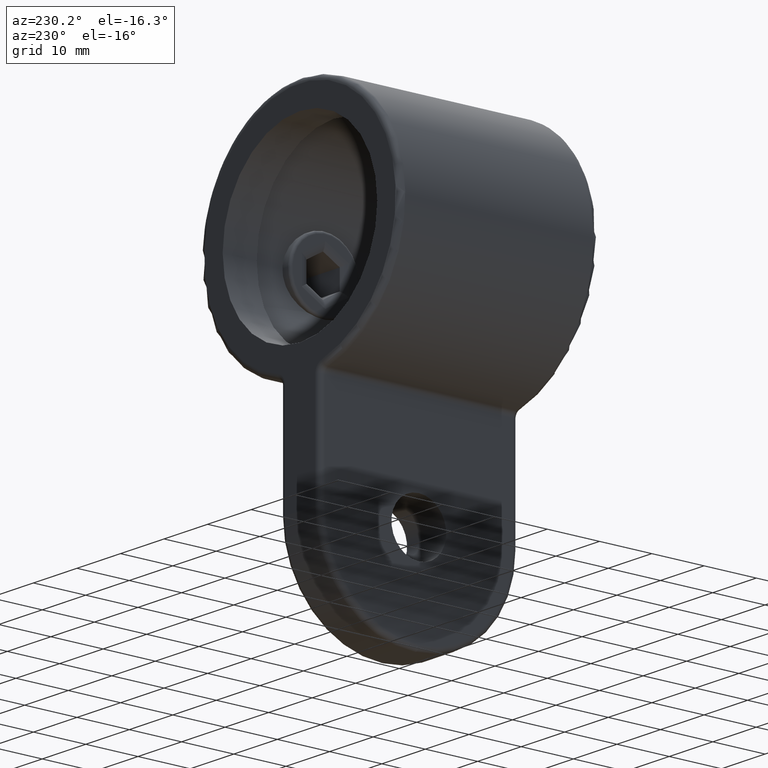
[diagram: clean part render]
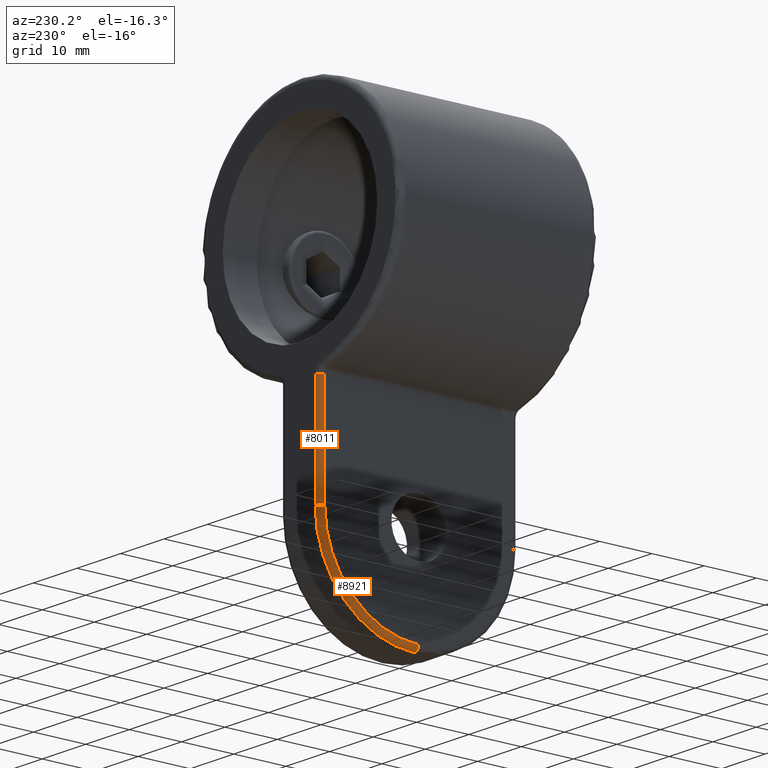
[diagram: same view with one multi-face feature highlighted, each face labeled with its STEP entity id]
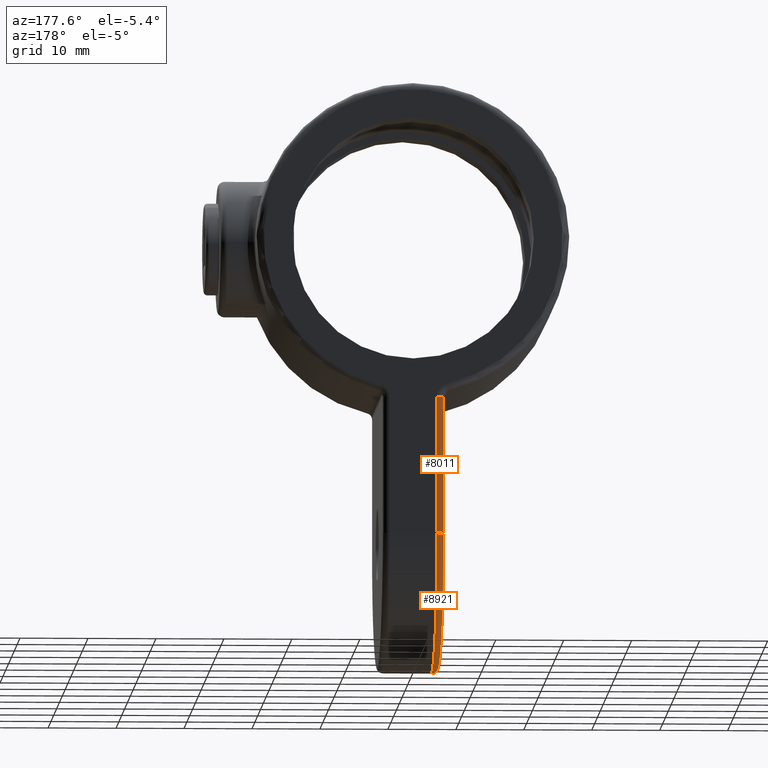
[diagram: same view with one multi-face feature highlighted, each face labeled with its STEP entity id]
A machine part, auxiliary view. The highlighted faces form ONE feature: a constant-radius fillet chain: 2 tangent blend faces with common blend radius 1 mm. The faces share edges in the B-rep.
A second angle (auxiliary view) of the same feature is appended — it is thin or edge-on in the first view.
Their STEP definitions:
[1] entity #8921 (Torus):
#519 = FACE_OUTER_BOUND ( 'NONE', #7634, .T. ) ;
#608 = AXIS2_PLACEMENT_3D ( 'NONE', #3738, #4666, #11352 ) ;
#772 = DIRECTION ( 'NONE',  ( 0.000000000000000000, 0.000000000000000000, -1.000000000000000000 ) ) ;
#1011 = VERTEX_POINT ( 'NONE', #3306 ) ;
#1511 = ORIENTED_EDGE ( 'NONE', *, *, #12356, .T. ) ;
#1829 = DIRECTION ( 'NONE',  ( 1.000000000000000000, -0.000000000000000000, 0.000000000000000000 ) ) ;
#2609 = ORIENTED_EDGE ( 'NONE', *, *, #6290, .T. ) ;
#3306 = CARTESIAN_POINT ( 'NONE',  ( -4.500000000000000000, 18.00000000000000000, -43.50000000000000000 ) ) ;
#3738 = CARTESIAN_POINT ( 'NONE',  ( -3.499999999999999556, 0.000000000000000000, -61.50000000000000000 ) ) ;
#3933 = VERTEX_POINT ( 'NONE', #5359 ) ;
#4074 = CARTESIAN_POINT ( 'NONE',  ( -3.499999999999999556, 0.000000000000000000, -62.50000000000000000 ) ) ;
#4102 = CIRCLE ( 'NONE', #8979, 19.00000000000000355 ) ;
#4666 = DIRECTION ( 'NONE',  ( 0.000000000000000000, 1.000000000000000000, 0.000000000000000000 ) ) ;
#5022 = AXIS2_PLACEMENT_3D ( 'NONE', #5630, #1829, #9531 ) ;
#5341 = AXIS2_PLACEMENT_3D ( 'NONE', #8929, #7034, #10856 ) ;
#5359 = CARTESIAN_POINT ( 'NONE',  ( -4.500000000000000000, 0.000000000000000000, -61.50000000000000000 ) ) ;
#5630 = CARTESIAN_POINT ( 'NONE',  ( -3.499999999999999556, 0.000000000000000000, -43.50000000000000000 ) ) ;
#6290 = EDGE_CURVE ( 'NONE', #8030, #3933, #9148, .T. ) ;
#7034 = DIRECTION ( 'NONE',  ( -1.000000000000000000, 0.000000000000000000, -0.000000000000000000 ) ) ;
#7428 = CARTESIAN_POINT ( 'NONE',  ( -3.499999999999999556, 19.00000000000000000, -43.50000000000000000 ) ) ;
#7533 = CIRCLE ( 'NONE', #5341, 18.00000000000000355 ) ;
#7634 = EDGE_LOOP ( 'NONE', ( #1511, #10146, #2609, #8684 ) ) ;
#8030 = VERTEX_POINT ( 'NONE', #4074 ) ;
#8671 = CARTESIAN_POINT ( 'NONE',  ( -3.499999999999999556, 0.000000000000000000, -43.50000000000000000 ) ) ;
#8684 = ORIENTED_EDGE ( 'NONE', *, *, #9398, .F. ) ;
#8921 = ADVANCED_FACE ( 'NONE', ( #519 ), #11344, .T. ) ;
#8929 = CARTESIAN_POINT ( 'NONE',  ( -4.500000000000000000, 0.000000000000000000, -43.50000000000000000 ) ) ;
#8979 = AXIS2_PLACEMENT_3D ( 'NONE', #8671, #11525, #772 ) ;
#9148 = CIRCLE ( 'NONE', #608, 1.000000000000000888 ) ;
#9155 = CARTESIAN_POINT ( 'NONE',  ( -3.499999999999999556, 18.00000000000000000, -43.50000000000000000 ) ) ;
#9194 = VERTEX_POINT ( 'NONE', #7428 ) ;
#9398 = EDGE_CURVE ( 'NONE', #1011, #3933, #7533, .T. ) ;
#9531 = DIRECTION ( 'NONE',  ( 0.000000000000000000, 0.000000000000000000, -1.000000000000000000 ) ) ;
#10146 = ORIENTED_EDGE ( 'NONE', *, *, #11923, .F. ) ;
#10688 = CIRCLE ( 'NONE', #12114, 1.000000000000000000 ) ;
#10856 = DIRECTION ( 'NONE',  ( 0.000000000000000000, 0.000000000000000000, -1.000000000000000000 ) ) ;
#11218 = DIRECTION ( 'NONE',  ( 0.000000000000000000, 0.000000000000000000, -1.000000000000000000 ) ) ;
#11344 = TOROIDAL_SURFACE ( 'NONE', #5022, 18.00000000000000000, 1.000000000000000000 ) ;
#11352 = DIRECTION ( 'NONE',  ( 0.000000000000000000, 0.000000000000000000, 1.000000000000000000 ) ) ;
#11525 = DIRECTION ( 'NONE',  ( 1.000000000000000000, -0.000000000000000000, 0.000000000000000000 ) ) ;
#11923 = EDGE_CURVE ( 'NONE', #8030, #9194, #4102, .T. ) ;
#12114 = AXIS2_PLACEMENT_3D ( 'NONE', #9155, #11218, #12152 ) ;
#12152 = DIRECTION ( 'NONE',  ( -1.000000000000000000, 0.000000000000000000, 0.000000000000000000 ) ) ;
#12356 = EDGE_CURVE ( 'NONE', #1011, #9194, #10688, .T. ) ;
[2] entity #8011 (Cylinder):
#143 = LINE ( 'NONE', #5046, #2868 ) ;
#229 = EDGE_LOOP ( 'NONE', ( #1883, #5764, #1970, #6973 ) ) ;
#1011 = VERTEX_POINT ( 'NONE', #3306 ) ;
#1059 = DIRECTION ( 'NONE',  ( -1.000000000000000000, 0.000000000000000000, 0.000000000000000000 ) ) ;
#1445 = DIRECTION ( 'NONE',  ( 1.000000000000000000, 0.000000000000000000, 0.000000000000000000 ) ) ;
#1883 = ORIENTED_EDGE ( 'NONE', *, *, #6653, .T. ) ;
#1970 = ORIENTED_EDGE ( 'NONE', *, *, #12356, .F. ) ;
#2375 = VECTOR ( 'NONE', #5447, 1000.000000000000000 ) ;
#2771 = CARTESIAN_POINT ( 'NONE',  ( -3.499999999999999556, 18.00000000000000000, 0.000000000000000000 ) ) ;
#2868 = VECTOR ( 'NONE', #3193, 1000.000000000000000 ) ;
#3130 = CIRCLE ( 'NONE', #9873, 1.000000000000000000 ) ;
#3193 = DIRECTION ( 'NONE',  ( 0.000000000000000000, -0.000000000000000000, -1.000000000000000000 ) ) ;
#3226 = EDGE_CURVE ( 'NONE', #4089, #1011, #143, .T. ) ;
#3306 = CARTESIAN_POINT ( 'NONE',  ( -4.500000000000000000, 18.00000000000000000, -43.50000000000000000 ) ) ;
#3749 = DIRECTION ( 'NONE',  ( 0.000000000000000000, 0.000000000000000000, -1.000000000000000000 ) ) ;
#3863 = CYLINDRICAL_SURFACE ( 'NONE', #10754, 1.000000000000000000 ) ;
#4089 = VERTEX_POINT ( 'NONE', #10769 ) ;
#4159 = FACE_OUTER_BOUND ( 'NONE', #229, .T. ) ;
#5046 = CARTESIAN_POINT ( 'NONE',  ( -4.500000000000000000, 18.00000000000000000, -43.50000000000000000 ) ) ;
#5119 = EDGE_CURVE ( 'NONE', #9194, #8147, #10202, .T. ) ;
#5447 = DIRECTION ( 'NONE',  ( -0.000000000000000000, 0.000000000000000000, 1.000000000000000000 ) ) ;
#5764 = ORIENTED_EDGE ( 'NONE', *, *, #5119, .F. ) ;
#6653 = EDGE_CURVE ( 'NONE', #4089, #8147, #3130, .T. ) ;
#6973 = ORIENTED_EDGE ( 'NONE', *, *, #3226, .F. ) ;
#7428 = CARTESIAN_POINT ( 'NONE',  ( -3.499999999999999556, 19.00000000000000000, -43.50000000000000000 ) ) ;
#7905 = CARTESIAN_POINT ( 'NONE',  ( -3.499999999999999556, 19.00000000000000000, -22.55548713727992194 ) ) ;
#8011 = ADVANCED_FACE ( 'NONE', ( #4159 ), #3863, .T. ) ;
#8147 = VERTEX_POINT ( 'NONE', #11172 ) ;
#8215 = CARTESIAN_POINT ( 'NONE',  ( -3.499999999999999556, 18.00000000000000000, -23.36129277244733871 ) ) ;
#9155 = CARTESIAN_POINT ( 'NONE',  ( -3.499999999999999556, 18.00000000000000000, -43.50000000000000000 ) ) ;
#9194 = VERTEX_POINT ( 'NONE', #7428 ) ;
#9873 = AXIS2_PLACEMENT_3D ( 'NONE', #8215, #10196, #1445 ) ;
#10196 = DIRECTION ( 'NONE',  ( -0.000000000000000000, 0.000000000000000000, -1.000000000000000000 ) ) ;
#10202 = LINE ( 'NONE', #7905, #2375 ) ;
#10688 = CIRCLE ( 'NONE', #12114, 1.000000000000000000 ) ;
#10754 = AXIS2_PLACEMENT_3D ( 'NONE', #2771, #3749, #1059 ) ;
#10769 = CARTESIAN_POINT ( 'NONE',  ( -4.500000000000000000, 18.00000000000000000, -23.36129277244733871 ) ) ;
#11172 = CARTESIAN_POINT ( 'NONE',  ( -3.499999999999999556, 19.00000000000000000, -23.36129277244733871 ) ) ;
#11218 = DIRECTION ( 'NONE',  ( 0.000000000000000000, 0.000000000000000000, -1.000000000000000000 ) ) ;
#12114 = AXIS2_PLACEMENT_3D ( 'NONE', #9155, #11218, #12152 ) ;
#12152 = DIRECTION ( 'NONE',  ( -1.000000000000000000, 0.000000000000000000, 0.000000000000000000 ) ) ;
#12356 = EDGE_CURVE ( 'NONE', #1011, #9194, #10688, .T. ) ;